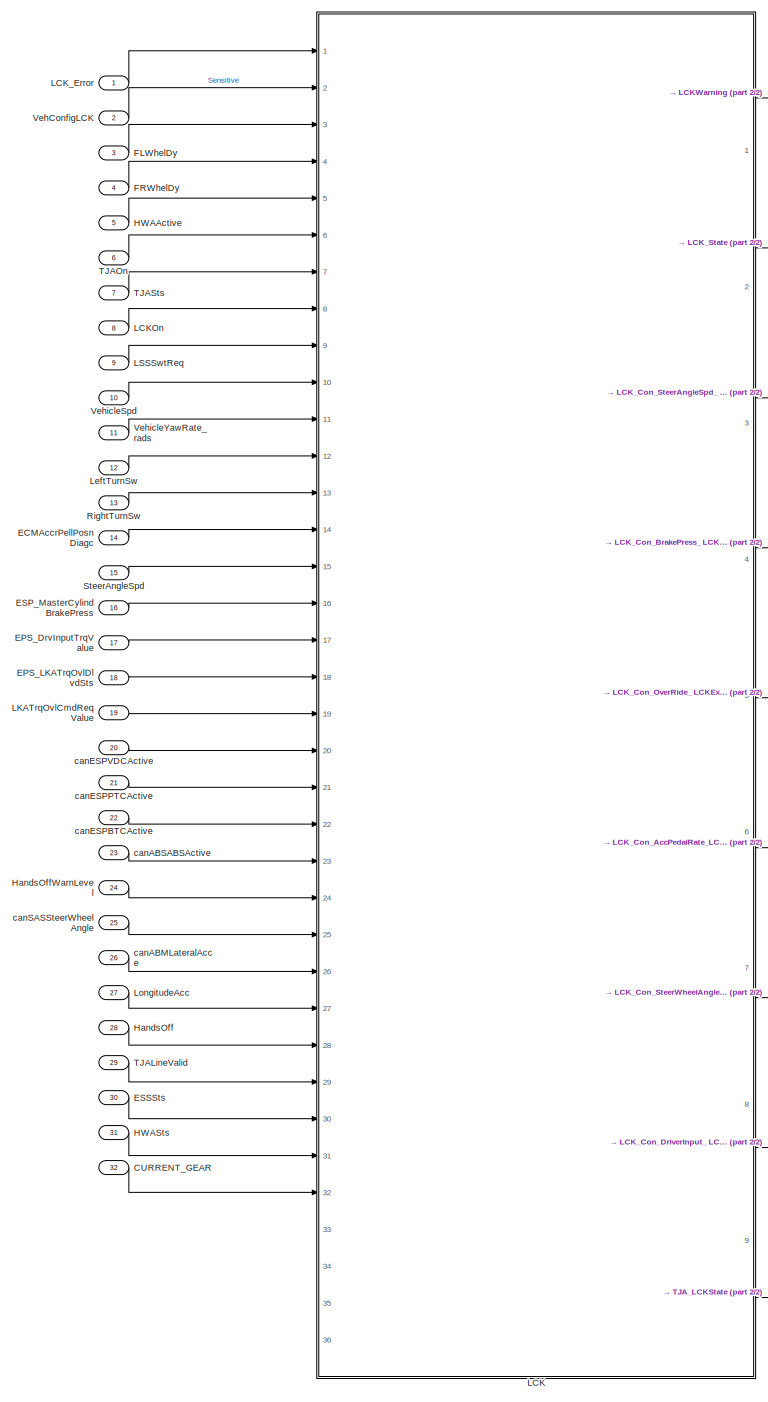
[diagram: root canvas - part 1/2, center side, full height]
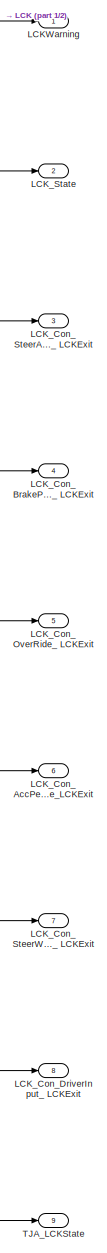
[diagram: root canvas - part 2/2, right side, full height]
MODEL slx_3430c20428f8
KIND model
CONFIG AbsTol = auto
CONFIG EnableMultiTasking = off
CONFIG FixedStep = auto
CONFIG InitFcn = , if any(exist('dsmpb_private', 'file') ~= 0), dsmpb_private('dsmpb_mdlclblib', 'Init', bdroot); end,\n
CONFIG MaxStep = auto
CONFIG MinStep = auto
CONFIG PostLoadFcn = if any(exist('dsrtsu_mdlpostloadfcn', 'file') ~= 0), dsrtsu_mdlpostloadfcn('Execute', bdroot); end
CONFIG RelTol = 1e-3
CONFIG SampleTimeConstraint = Unconstrained
CONFIG SolverName = FixedStepAuto
CONFIG StartTime = 0.0
CONFIG StopTime = Inf
BLOCK [Inport] CURRENT_GEAR
  OutDataTypeStr = uint8
  Port = 32
BLOCK [Inport] ECMAccrPellPosnDiagc
  OutDataTypeStr = single
  Port = 14
BLOCK [Inport] EPS_DrvInputTrqValue
  OutDataTypeStr = single
  Port = 17
BLOCK [Inport] EPS_LKATrqOvlDlvdSts
  OutDataTypeStr = uint8
  Port = 18
BLOCK [Inport] ESP_MasterCylindBrakePress
  OutDataTypeStr = single
  Port = 16
BLOCK [Inport] ESSSts
  OutDataTypeStr = uint8
  Port = 30
BLOCK [Inport] FLWhelDy
  OutDataTypeStr = single
  Port = 3
BLOCK [Inport] FRWhelDy
  OutDataTypeStr = single
  Port = 4
BLOCK [Inport] HWAActive
  OutDataTypeStr = boolean
  Port = 5
BLOCK [Inport] HWASts
  OutDataTypeStr = uint8
  Port = 31
BLOCK [Inport] HandsOff
  OutDataTypeStr = boolean
  Port = 28
BLOCK [Inport] HandsOffWarnLevel
  OutDataTypeStr = uint8
  Port = 24
BLOCK [SubSystem] LCK
  Ports = [36, 9]
  ReferencedSubsystem = PvtSubSys_VSM_LCK
  RequestExecContextInheritance = off
BLOCK [Inport] LCKOn
  Port = 8
BLOCK [Outport] LCKWarning
BLOCK [Outport] LCK_Con_AccPedalRate_LCKExit
  Port = 6
BLOCK [Outport] LCK_Con_BrakePress_ LCKExit
  Port = 4
BLOCK [Outport] LCK_Con_DriverInput_ LCKExit
  Port = 8
BLOCK [Outport] LCK_Con_OverRide_ LCKExit
  Port = 5
BLOCK [Outport] LCK_Con_SteerAngleSpd_ LCKExit
  Port = 3
BLOCK [Outport] LCK_Con_SteerWheelAngle_ LCKExit
  Port = 7
BLOCK [Inport] LCK_Error
  OutDataTypeStr = boolean
BLOCK [Outport] LCK_State
  Port = 2
BLOCK [Inport] LKATrqOvlCmdReqValue
  OutDataTypeStr = single
  Port = 19
BLOCK [Inport] LSSSwtReq
  Port = 9
BLOCK [Inport] LeftTurnSw
  OutDataTypeStr = boolean
  Port = 12
BLOCK [Inport] LongitudeAcc
  OutDataTypeStr = single
  Port = 27
BLOCK [Inport] RightTurnSw
  OutDataTypeStr = boolean
  Port = 13
BLOCK [Inport] SteerAngleSpd
  OutDataTypeStr = single
  Port = 15
BLOCK [Inport] TJALineValid
  OutDataTypeStr = boolean
  Port = 29
BLOCK [Inport] TJAOn
  OutDataTypeStr = boolean
  Port = 6
BLOCK [Inport] TJASts
  OutDataTypeStr = uint8
  Port = 7
BLOCK [Outport] TJA_LCKState
  Port = 9
BLOCK [Inport] VehConfigLCK
  OutDataTypeStr = uint8
  Port = 2
BLOCK [Inport] VehicleSpd
  OutDataTypeStr = single
  Port = 10
BLOCK [Inport] VehicleYawRate_rads
  OutDataTypeStr = single
  Port = 11
BLOCK [Inport] canABMLateralAcce
  OutDataTypeStr = single
  Port = 26
BLOCK [Inport] canABSABSActive
  OutDataTypeStr = boolean
  Port = 23
BLOCK [Inport] canESPBTCActive
  OutDataTypeStr = boolean
  Port = 22
BLOCK [Inport] canESPPTCActive
  OutDataTypeStr = boolean
  Port = 21
BLOCK [Inport] canESPVDCActive
  OutDataTypeStr = boolean
  Port = 20
BLOCK [Inport] canSASSteerWheelAngle
  OutDataTypeStr = single
  Port = 25
LINE CURRENT_GEAR:1 -> LCK:32
LINE ECMAccrPellPosnDiagc:1 -> LCK:14
LINE EPS_DrvInputTrqValue:1 -> LCK:17
LINE EPS_LKATrqOvlDlvdSts:1 -> LCK:18
LINE ESP_MasterCylindBrakePress:1 -> LCK:16
LINE ESSSts:1 -> LCK:30
LINE FLWhelDy:1 -> LCK:3
LINE FRWhelDy:1 -> LCK:4
LINE HWAActive:1 -> LCK:5
LINE HWASts:1 -> LCK:31
LINE HandsOff:1 -> LCK:28
LINE HandsOffWarnLevel:1 -> LCK:24
LINE LCK:1 -> LCKWarning:1
LINE LCK:2 -> LCK_State:1
LINE LCK:3 -> LCK_Con_SteerAngleSpd_ LCKExit:1
LINE LCK:4 -> LCK_Con_BrakePress_ LCKExit:1
LINE LCK:5 -> LCK_Con_OverRide_ LCKExit:1
LINE LCK:6 -> LCK_Con_AccPedalRate_LCKExit:1
LINE LCK:7 -> LCK_Con_SteerWheelAngle_ LCKExit:1
LINE LCK:8 -> LCK_Con_DriverInput_ LCKExit:1
LINE LCK:9 -> TJA_LCKState:1
LINE LCKOn:1 -> LCK:8
LINE LCK_Error:1 -> LCK:1
LINE LKATrqOvlCmdReqValue:1 -> LCK:19
LINE LSSSwtReq:1 -> LCK:9
LINE LeftTurnSw:1 -> LCK:12
LINE LongitudeAcc:1 -> LCK:27
LINE RightTurnSw:1 -> LCK:13
LINE SteerAngleSpd:1 -> LCK:15
LINE TJALineValid:1 -> LCK:29
LINE TJAOn:1 -> LCK:6
LINE TJASts:1 -> LCK:7
LINE VehConfigLCK:1 -> LCK:2
LINE VehicleSpd:1 -> LCK:10
LINE VehicleYawRate_rads:1 -> LCK:11
LINE canABMLateralAcce:1 -> LCK:26
LINE canABSABSActive:1 -> LCK:23
LINE canESPBTCActive:1 -> LCK:22
LINE canESPPTCActive:1 -> LCK:21
LINE canESPVDCActive:1 -> LCK:20
LINE canSASSteerWheelAngle:1 -> LCK:25
